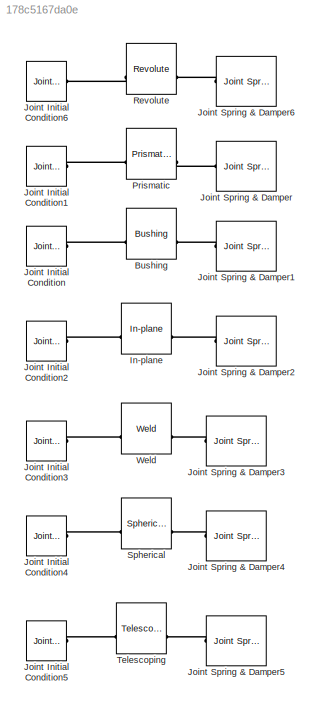
MODEL slx_178c5167da0e
KIND model
CONFIG PostLoadFcn = r1_axis = [0 1 0];
BLOCK [Reference] Bushing  REF=mblibv1/Joints/Bushing
  ClassName = Joint
  CutJoint = off
  DialogClass = JointBlock
  LConnTagsString = __newl0|SA1
  MarkAsCut = off
  NumSAPorts = 2
  P1Axis = [1 0 0]
  P2Axis = [0 1 0]
  P3Axis = [0 0 1]
  Ports = [0, 0, 0, 0, 0, 2, 2]
  PrimitiveProps = P1$World$[1 0 0]$prismatic#P2$World$[0 1 0]$prismatic#P3$World$[0 0 1]$prismatic#R1$World$[1 0 0]$revolute#R2$World$[0 1 0]$revolute#R3$World$[0 0 1]$revolute
  Primitives = prismatic_prismatic_prismatic
  R1Axis = [1 0 0]
  R2Axis = [0 1 0]
  R3Axis = [0 0 1]
  RConnTagsString = __newr0|SA1
  SourceBlock = mblibv1/Joints/Bushing
  SourceType = Bushing
  UpdateFromCAD = off
BLOCK [Reference] In-plane  REF=mblibv1/Joints/In-plane
  ClassName = InplaneJoint
  CutJoint = off
  DialogClass = JointBlock
  LConnTagsString = __newl0|SA1
  MarkAsCut = off
  NumSAPorts = 2
  P1Axis = [1 0 0]
  P2Axis = [0 1 0]
  Ports = [0, 0, 0, 0, 0, 2, 2]
  PrimitiveProps = P1$World$[1 0 0]$prismatic#P2$World$[0 1 0]$prismatic
  Primitives = prismatic
  RConnTagsString = __newr0|SA1
  SourceBlock = mblibv1/Joints/In-plane
  SourceType = In-plane
  UpdateFromCAD = off
BLOCK [Reference] Joint Initial Condition  REF=mblibv1/Sensors & 
Actuators/Joint Initial Condition
  ClassName = InitialCondition
  DialogClass = InitialConditionBlock
  InitialConditions = P1$true$1$m$deg$0$m/s$deg/s#P2$true$2$m$deg$0$m/s$deg/s#P3$true$3$m$deg$0$m/s$deg/s#R1$true$4$m$deg$0$m/s$deg/s#R2$true$5$m$deg$0$m/s$deg/s#R3$true$6$m$deg$0$m/s$deg/s#S$false$0$m$deg$0$m/s$deg/s
  LeftPortType = blob
  P1PIC = 1
  P1VIC = 0
  P2PIC = 2
  P2VIC = 0
  P3PIC = 3
  P3VIC = 0
  PhysicalDomain = mechanical
  Ports = [0, 0, 0, 0, 0, 0, 1]
  R1PIC = 4
  R1VIC = 0
  R2PIC = 5
  R2VIC = 0
  R3PIC = 6
  R3VIC = 0
  RightPortType = blob
  SPIC = 0
  SVIC = 0
  SourceBlock = mblibv1/Sensors & \nActuators/Joint Initial Condition
  SourceType = Joint Initial Condition
  UpdateFromCAD = off
BLOCK [Reference] Joint Initial Condition1  REF=mblibv1/Sensors & 
Actuators/Joint Initial Condition
  ClassName = InitialCondition
  DialogClass = InitialConditionBlock
  InitialConditions = P1$true$h$m$deg$0$m/s$deg/s#P2$false$0$m$deg$0$m/s$deg/s#P3$false$0$m$deg$0$m/s$deg/s#R1$false$0$m$deg$0$m/s$deg/s#R2$false$0$m$deg$0$m/s$deg/s#R3$false$0$m$deg$0$m/s$deg/s#S$false$0$m$deg$0$m/s$deg/s
  LeftPortType = blob
  P1PIC = h
  P1VIC = 0
  P2PIC = 0
  P2VIC = 0
  P3PIC = 0
  P3VIC = 0
  PhysicalDomain = mechanical
  Ports = [0, 0, 0, 0, 0, 0, 1]
  R1PIC = 0
  R1VIC = 0
  R2PIC = 0
  R2VIC = 0
  R3PIC = 0
  R3VIC = 0
  RightPortType = blob
  SPIC = 0
  SVIC = 0
  SourceBlock = mblibv1/Sensors & \nActuators/Joint Initial Condition
  SourceType = Joint Initial Condition
  UpdateFromCAD = off
BLOCK [Reference] Joint Initial Condition2  REF=mblibv1/Sensors & 
Actuators/Joint Initial Condition
  ClassName = InitialCondition
  DialogClass = InitialConditionBlock
  InitialConditions = P1$true$1$m$deg$0$m/s$deg/s#P2$true$2$m$deg$0$m/s$deg/s#P3$false$3$m$deg$0$m/s$deg/s#R1$false$4$m$deg$0$m/s$deg/s#R2$false$5$m$deg$0$m/s$deg/s#R3$false$6$m$deg$0$m/s$deg/s#S$false$0$m$deg$0$m/s$deg/s
  LeftPortType = blob
  P1PIC = 1
  P1VIC = 0
  P2PIC = 2
  P2VIC = 0
  P3PIC = 0
  P3VIC = 0
  PhysicalDomain = mechanical
  Ports = [0, 0, 0, 0, 0, 0, 1]
  R1PIC = 0
  R1VIC = 0
  R2PIC = 0
  R2VIC = 0
  R3PIC = 0
  R3VIC = 0
  RightPortType = blob
  SPIC = 0
  SVIC = 0
  SourceBlock = mblibv1/Sensors & \nActuators/Joint Initial Condition
  SourceType = Joint Initial Condition
  UpdateFromCAD = off
BLOCK [Reference] Joint Initial Condition3  REF=mblibv1/Sensors & 
Actuators/Joint Initial Condition
  ClassName = InitialCondition
  DialogClass = InitialConditionBlock
  InitialConditions = P1$false$1$m$deg$0$m/s$deg/s#P2$false$2$m$deg$0$m/s$deg/s#P3$false$3$m$deg$0$m/s$deg/s#R1$false$4$m$deg$0$m/s$deg/s#R2$false$5$m$deg$0$m/s$deg/s#R3$false$6$m$deg$0$m/s$deg/s#S$false$0$m$deg$0$m/s$deg/s
  LeftPortType = blob
  P1PIC = 0
  P1VIC = 0
  P2PIC = 0
  P2VIC = 0
  P3PIC = 0
  P3VIC = 0
  PhysicalDomain = mechanical
  Ports = [0, 0, 0, 0, 0, 0, 1]
  R1PIC = 0
  R1VIC = 0
  R2PIC = 0
  R2VIC = 0
  R3PIC = 0
  R3VIC = 0
  RightPortType = blob
  SPIC = 0
  SVIC = 0
  SourceBlock = mblibv1/Sensors & \nActuators/Joint Initial Condition
  SourceType = Joint Initial Condition
  UpdateFromCAD = off
BLOCK [Reference] Joint Initial Condition4  REF=mblibv1/Sensors & 
Actuators/Joint Initial Condition
  ClassName = InitialCondition
  DialogClass = InitialConditionBlock
  InitialConditions = P1$false$1$m$deg$0$m/s$deg/s#P2$false$2$m$deg$0$m/s$deg/s#P3$false$3$m$deg$0$m/s$deg/s#R1$false$4$m$deg$0$m/s$deg/s#R2$false$5$m$deg$0$m/s$deg/s#R3$false$6$m$deg$0$m/s$deg/s#S$false$0$m$deg$0$m/s$deg/s
  LeftPortType = blob
  P1PIC = 0
  P1VIC = 0
  P2PIC = 0
  P2VIC = 0
  P3PIC = 0
  P3VIC = 0
  PhysicalDomain = mechanical
  Ports = [0, 0, 0, 0, 0, 0, 1]
  R1PIC = 0
  R1VIC = 0
  R2PIC = 0
  R2VIC = 0
  R3PIC = 0
  R3VIC = 0
  RightPortType = blob
  SPIC = 0
  SVIC = 0
  SourceBlock = mblibv1/Sensors & \nActuators/Joint Initial Condition
  SourceType = Joint Initial Condition
  UpdateFromCAD = off
BLOCK [Reference] Joint Initial Condition5  REF=mblibv1/Sensors & 
Actuators/Joint Initial Condition
  ClassName = InitialCondition
  DialogClass = InitialConditionBlock
  InitialConditions = P1$true$1$m$deg$0$m/s$deg/s#P2$false$2$m$deg$0$m/s$deg/s#P3$false$3$m$deg$0$m/s$deg/s#R1$false$4$m$deg$0$m/s$deg/s#R2$false$5$m$deg$0$m/s$deg/s#R3$false$6$m$deg$0$m/s$deg/s#S$false$0$m$deg$0$m/s$deg/s
  LeftPortType = blob
  P1PIC = 1
  P1VIC = 0
  P2PIC = 0
  P2VIC = 0
  P3PIC = 0
  P3VIC = 0
  PhysicalDomain = mechanical
  Ports = [0, 0, 0, 0, 0, 0, 1]
  R1PIC = 0
  R1VIC = 0
  R2PIC = 0
  R2VIC = 0
  R3PIC = 0
  R3VIC = 0
  RightPortType = blob
  SPIC = 0
  SVIC = 0
  SourceBlock = mblibv1/Sensors & \nActuators/Joint Initial Condition
  SourceType = Joint Initial Condition
  UpdateFromCAD = off
BLOCK [Reference] Joint Initial Condition6  REF=mblibv1/Sensors & 
Actuators/Joint Initial Condition
  ClassName = InitialCondition
  DialogClass = InitialConditionBlock
  InitialConditions = P1$false$h$m$deg$0$m/s$deg/s#P2$false$0$m$deg$0$m/s$deg/s#P3$false$0$m$deg$0$m/s$deg/s#R1$true$1$m$rev$2$m/s$rpm#R2$false$0$m$deg$0$m/s$deg/s#R3$false$0$m$deg$0$m/s$deg/s#S$false$0$m$deg$0$m/s$deg/s
  LeftPortType = blob
  P1PIC = 0
  P1VIC = 0
  P2PIC = 0
  P2VIC = 0
  P3PIC = 0
  P3VIC = 0
  PhysicalDomain = mechanical
  Ports = [0, 0, 0, 0, 0, 0, 1]
  R1PIC = 1
  R1VIC = 2
  R2PIC = 0
  R2VIC = 0
  R3PIC = 0
  R3VIC = 0
  RightPortType = blob
  SPIC = 0
  SVIC = 0
  SourceBlock = mblibv1/Sensors & \nActuators/Joint Initial Condition
  SourceType = Joint Initial Condition
  UpdateFromCAD = off
BLOCK [Reference] Joint Spring & Damper  REF=mblibv1/Force 
Elements/Joint Spring & Damper
  ClassName = JointSpringDamper
  DialogClass = JointSpringDamper
  JFEParameters = P1$true$1$2$3$cm$in/s$dyn$deg$deg/s$N*m#P2$false$0$0$0$m$m/s$N$deg$deg/s$N*m#P3$false$0$0$0$m$m/s$N$deg$deg/s$N*m#R1$false$0$0$0$m$m/s$N$deg$deg/s$N*m#R2$false$0$0$0$m$m/s$N$deg$deg/s$N*m#R3$false$0$0$0$m$m/s$N$deg$deg/s$N*m#S$false$0$0$0$m$m/s$N$deg$deg/s$N*m
  Ports = [0, 0, 0, 0, 0, 1]
  SourceBlock = mblibv1/Force \nElements/Joint Spring & Damper
  SourceType = Joint Spring & Damper
  UpdateFromCAD = off
BLOCK [Reference] Joint Spring & Damper1  REF=mblibv1/Force 
Elements/Joint Spring & Damper
  ClassName = JointSpringDamper
  DialogClass = JointSpringDamper
  JFEParameters = P1$true$1$11$112$m$in/s$N$deg$deg/s$N*m#P2$true$2$22$223$cm$ft/s$lbf$deg$deg/s$N*m#P3$true$3$33$334$mm$mi/s$mN$deg$deg/s$N*m#R1$true$4$44$445$m$m/s$N$rad$rpm$mN*m#R2$true$5$55$556$m$m/s$N$rad$rpm$mN*m#R3$true$6$66$667$m$m/s$N$rad$rpm$mN*m#S$false$0$0$0$m$m/s$N$deg$deg/s$N*m
  Ports = [0, 0, 0, 0, 0, 1]
  SourceBlock = mblibv1/Force \nElements/Joint Spring & Damper
  SourceType = Joint Spring & Damper
  UpdateFromCAD = off
BLOCK [Reference] Joint Spring & Damper2  REF=mblibv1/Force 
Elements/Joint Spring & Damper
  ClassName = JointSpringDamper
  DialogClass = JointSpringDamper
  JFEParameters = P1$true$1$11$112$m$in/s$dyn$deg$deg/s$N*m#P2$true$2$22$223$cm$ft/s$lbf$deg$deg/s$N*m#P3$false$3$33$334$mm$mi/s$mN$deg$deg/s$N*m#R1$false$4$44$445$m$m/s$N$rad$rpm$mN*m#R2$false$5$55$556$m$m/s$N$rad$rpm$mN*m#R3$false$6$66$667$m$m/s$N$rad$rpm$mN*m#S$false$0$0$0$m$m/s$N$deg$deg/s$N*m  <repeated x4 — deduplicated; at blocks: Joint Spring & Damper2, Joint Spring & Damper3, Joint Spring & Damper4, Joint Spring & Damper5>
  Ports = [0, 0, 0, 0, 0, 1]
  SourceBlock = mblibv1/Force \nElements/Joint Spring & Damper
  SourceType = Joint Spring & Damper
  UpdateFromCAD = off
BLOCK [Reference] Joint Spring & Damper3  REF=mblibv1/Force 
Elements/Joint Spring & Damper
  ClassName = JointSpringDamper
  DialogClass = JointSpringDamper
  Ports = [0, 0, 0, 0, 0, 1]
  SourceBlock = mblibv1/Force \nElements/Joint Spring & Damper
  SourceType = Joint Spring & Damper
  UpdateFromCAD = off
BLOCK [Reference] Joint Spring & Damper4  REF=mblibv1/Force 
Elements/Joint Spring & Damper
  ClassName = JointSpringDamper
  DialogClass = JointSpringDamper
  Ports = [0, 0, 0, 0, 0, 1]
  SourceBlock = mblibv1/Force \nElements/Joint Spring & Damper
  SourceType = Joint Spring & Damper
  UpdateFromCAD = off
BLOCK [Reference] Joint Spring & Damper5  REF=mblibv1/Force 
Elements/Joint Spring & Damper
  ClassName = JointSpringDamper
  DialogClass = JointSpringDamper
  Ports = [0, 0, 0, 0, 0, 1]
  SourceBlock = mblibv1/Force \nElements/Joint Spring & Damper
  SourceType = Joint Spring & Damper
  UpdateFromCAD = off
BLOCK [Reference] Joint Spring & Damper6  REF=mblibv1/Force 
Elements/Joint Spring & Damper
  ClassName = JointSpringDamper
  DialogClass = JointSpringDamper
  JFEParameters = P1$false$1$2$3$cm$in/s$dyn$deg$deg/s$N*m#P2$false$0$0$0$m$m/s$N$deg$deg/s$N*m#P3$false$0$0$0$m$m/s$N$deg$deg/s$N*m#R1$true$1$2$3$m$m/s$N$rad$rpm$lbf*ft#R2$false$0$0$0$m$m/s$N$deg$deg/s$N*m#R3$false$0$0$0$m$m/s$N$deg$deg/s$N*m#S$false$0$0$0$m$m/s$N$deg$deg/s$N*m
  Ports = [0, 0, 0, 0, 0, 1]
  SourceBlock = mblibv1/Force \nElements/Joint Spring & Damper
  SourceType = Joint Spring & Damper
  UpdateFromCAD = off
BLOCK [Reference] Prismatic  REF=mblibv1/Joints/Prismatic
  ClassName = Joint
  CutJoint = off
  DialogClass = JointBlock
  LConnTagsString = __newl0|SA1
  MarkAsCut = off
  NumSAPorts = 2
  P1Axis = [0 0 1]
  Ports = [0, 0, 0, 0, 0, 2, 2]
  PrimitiveProps = P1$Base$[0 0 1]$prismatic
  Primitives = prismatic
  RConnTagsString = __newr0|SA1
  SourceBlock = mblibv1/Joints/Prismatic
  SourceType = Prismatic
  UpdateFromCAD = off
BLOCK [Reference] Revolute  REF=mblibv1/Joints/Revolute
  ClassName = Joint
  CutJoint = off
  DialogClass = JointBlock
  LConnTagsString = __newl0|SA1
  MarkAsCut = off
  NumSAPorts = 2
  Ports = [0, 0, 0, 0, 0, 2, 2]
  PrimitiveProps = R1$World$r1_axis$revolute
  Primitives = prismatic
  R1Axis = r1_axis
  RConnTagsString = __newr0|SA1
  SourceBlock = mblibv1/Joints/Revolute
  SourceType = Revolute
  UpdateFromCAD = off
BLOCK [Reference] Spherical  REF=mblibv1/Joints/Spherical
  ClassName = Joint
  CutJoint = off
  DialogClass = JointBlock
  LConnTagsString = __newl0|SA1
  MarkAsCut = off
  NumSAPorts = 2
  Ports = [0, 0, 0, 0, 0, 2, 2]
  PrimitiveProps = S$World$[0 0 0]$spherical
  Primitives = spherical
  RConnTagsString = __newr0|SA1
  SAxis = [0 0 0]
  SourceBlock = mblibv1/Joints/Spherical
  SourceType = Spherical
  UpdateFromCAD = off
BLOCK [Reference] Telescoping  REF=mblibv1/Joints/Telescoping
  ClassName = Joint
  CutJoint = off
  DialogClass = JointBlock
  LConnTagsString = __newl0|SA1
  MarkAsCut = off
  NumSAPorts = 2
  P1Axis = [1 0 0]
  Ports = [0, 0, 0, 0, 0, 2, 2]
  PrimitiveProps = S$World$[0 0 0]$spherical#P1$World$[1 0 0]$prismatic
  Primitives = spherical
  RConnTagsString = __newr0|SA1
  SAxis = [0 0 0]
  SourceBlock = mblibv1/Joints/Telescoping
  SourceType = Telescoping
  UpdateFromCAD = off
BLOCK [Reference] Weld  REF=mblibv1/Joints/Weld
  ClassName = Joint
  CutJoint = off
  DialogClass = JointBlock
  LConnTagsString = __newl0|SA1
  MarkAsCut = off
  NumSAPorts = 2
  Ports = [0, 0, 0, 0, 0, 2, 2]
  PrimitiveProps = W$World$[0 0 0]$weld
  Primitives = weld
  RConnTagsString = __newr0|SA1
  SourceBlock = mblibv1/Joints/Weld
  SourceType = Weld
  UpdateFromCAD = off
  WAxis = [0 0 0]
PLINE Bushing:LConn2 -- Joint Initial Condition:RConn1
PLINE Bushing:RConn2 -- Joint Spring & Damper1:LConn1
PLINE In-plane:LConn2 -- Joint Initial Condition2:RConn1
PLINE In-plane:RConn2 -- Joint Spring & Damper2:LConn1
PLINE Joint Initial Condition1:RConn1 -- Prismatic:LConn2
PLINE Joint Initial Condition3:RConn1 -- Weld:LConn2
PLINE Joint Initial Condition4:RConn1 -- Spherical:LConn2
PLINE Joint Initial Condition5:RConn1 -- Telescoping:LConn2
PLINE Joint Initial Condition6:RConn1 -- Revolute:LConn2
PLINE Joint Spring & Damper3:LConn1 -- Weld:RConn2
PLINE Joint Spring & Damper4:LConn1 -- Spherical:RConn2
PLINE Joint Spring & Damper5:LConn1 -- Telescoping:RConn2
PLINE Joint Spring & Damper6:LConn1 -- Revolute:RConn2
PLINE Joint Spring & Damper:LConn1 -- Prismatic:RConn2
